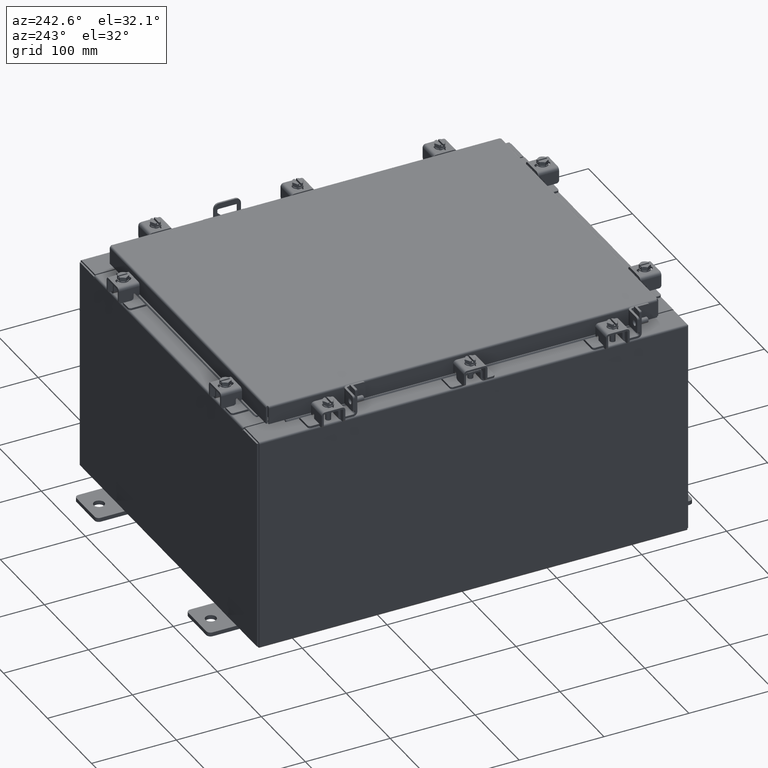
[diagram: clean part render]
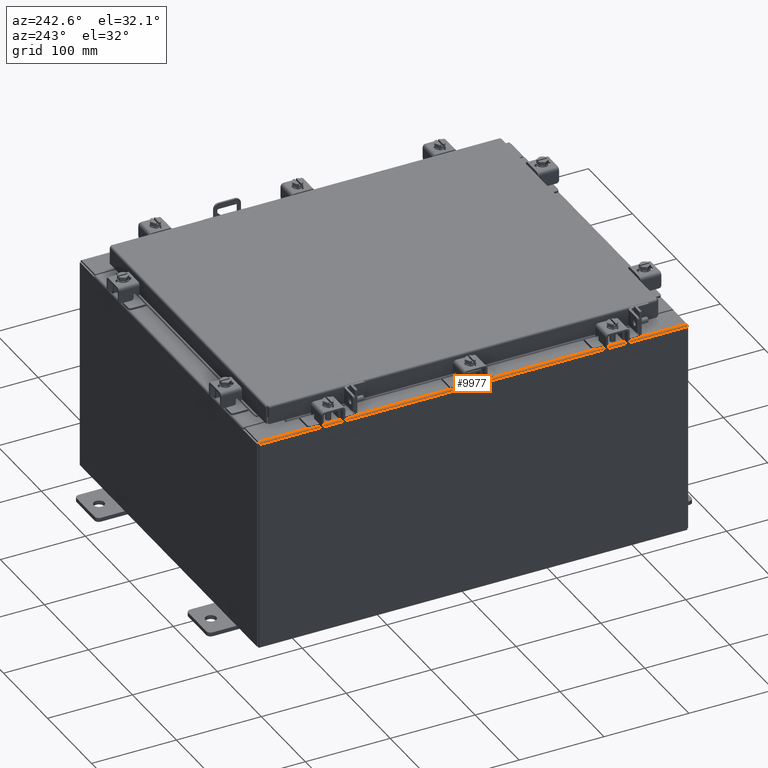
[diagram: same view with one face highlighted and labeled with its STEP entity id]
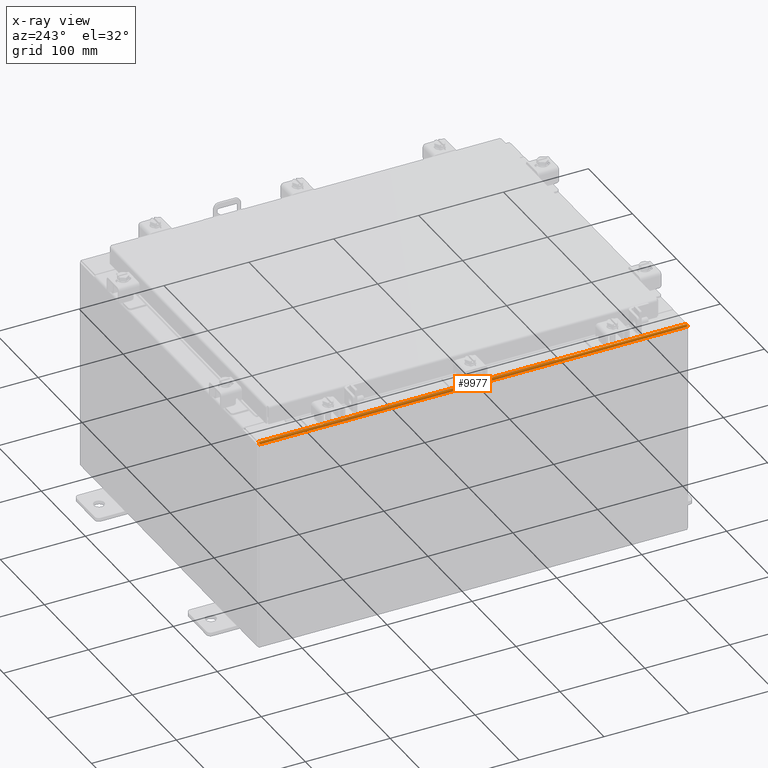
[diagram: x-ray of the same camera — body ghosted, the highlighted face saturated]
A machine part, auxiliary view. The second image highlights one B-rep face of the part: STEP entity #9977.
The next image is the same camera in x-ray: the body ghosted, the highlighted face saturated — about 0% of this face is hidden behind the body in this view.
In plain terms, the highlighted cylindrical surface (edge-blend (fillet) strip) has radius 2.2276 mm, axis along (-0, -1, -0).
Its self-contained STEP definition (entity closure, byte-faithful):
#449 = AXIS2_PLACEMENT_3D ( 'NONE', #3583, #15750, #5355 ) ;
#673 = LINE ( 'NONE', #16534, #18639 ) ;
#1397 = CARTESIAN_POINT ( 'NONE',  ( -7.912300000000032100, -9.925300000000001800, 9.837599999999998300 ) ) ;
#2631 = EDGE_CURVE ( 'NONE', #4442, #8261, #5494, .T. ) ;
#2682 = DIRECTION ( 'NONE',  ( -0.0000000000000000000, 1.000000000000000000, -1.100963394019027600E-016 ) ) ;
#2712 = ORIENTED_EDGE ( 'NONE', *, *, #15998, .T. ) ;
#3182 = DIRECTION ( 'NONE',  ( -0.0000000000000000000, -1.000000000000000000, -0.0000000000000000000 ) ) ;
#3233 = CARTESIAN_POINT ( 'NONE',  ( -8.000000000000032000, -9.925300000000001800, 9.837599999999998300 ) ) ;
#3583 = CARTESIAN_POINT ( 'NONE',  ( -7.912300000000032100, 9.925299999999998200, 9.837599999999998300 ) ) ;
#4442 = VERTEX_POINT ( 'NONE', #9007 ) ;
#5355 = DIRECTION ( 'NONE',  ( 0.0000000000000000000, 0.0000000000000000000, -1.000000000000000000 ) ) ;
#5494 = LINE ( 'NONE', #3233, #9548 ) ;
#5790 = CYLINDRICAL_SURFACE ( 'NONE', #20114, 0.08769999999999918100 ) ;
#6264 = VERTEX_POINT ( 'NONE', #8375 ) ;
#6896 = VERTEX_POINT ( 'NONE', #10378 ) ;
#7560 = ORIENTED_EDGE ( 'NONE', *, *, #16122, .F. ) ;
#8222 = CARTESIAN_POINT ( 'NONE',  ( -7.912300000000032100, -9.925300000000000000, 9.837599999999998300 ) ) ;
#8261 = VERTEX_POINT ( 'NONE', #21023 ) ;
#8375 = CARTESIAN_POINT ( 'NONE',  ( -7.912300000000032100, -9.925300000000001800, 9.925300000000000000 ) ) ;
#8673 = AXIS2_PLACEMENT_3D ( 'NONE', #8222, #20388, #9965 ) ;
#8854 = EDGE_CURVE ( 'NONE', #8261, #6896, #12090, .T. ) ;
#9007 = CARTESIAN_POINT ( 'NONE',  ( -8.000000000000032000, -9.925300000000000000, 9.837599999999998300 ) ) ;
#9548 = VECTOR ( 'NONE', #21464, 39.37007874015748100 ) ;
#9965 = DIRECTION ( 'NONE',  ( 0.0000000000000000000, 0.0000000000000000000, -1.000000000000000000 ) ) ;
#9977 = ADVANCED_FACE ( 'NONE', ( #10929 ), #5790, .T. ) ;
#10051 = DIRECTION ( 'NONE',  ( 0.0000000000000000000, 0.0000000000000000000, 1.000000000000000000 ) ) ;
#10378 = CARTESIAN_POINT ( 'NONE',  ( -7.912300000000032100, 9.925299999999998200, 9.925299999999998200 ) ) ;
#10929 = FACE_OUTER_BOUND ( 'NONE', #10945, .T. ) ;
#10945 = EDGE_LOOP ( 'NONE', ( #18715, #7560, #2712, #16136 ) ) ;
#12090 = CIRCLE ( 'NONE', #449, 0.08769999999999918100 ) ;
#12371 = CIRCLE ( 'NONE', #8673, 0.08769999999999918100 ) ;
#15750 = DIRECTION ( 'NONE',  ( 0.0000000000000000000, 1.000000000000000000, 0.0000000000000000000 ) ) ;
#15998 = EDGE_CURVE ( 'NONE', #6264, #6896, #673, .T. ) ;
#16122 = EDGE_CURVE ( 'NONE', #6264, #4442, #12371, .T. ) ;
#16136 = ORIENTED_EDGE ( 'NONE', *, *, #8854, .F. ) ;
#16534 = CARTESIAN_POINT ( 'NONE',  ( -7.912300000000032100, 9.925299999999998200, 9.925299999999998200 ) ) ;
#18639 = VECTOR ( 'NONE', #2682, 39.37007874015748100 ) ;
#18715 = ORIENTED_EDGE ( 'NONE', *, *, #2631, .F. ) ;
#20114 = AXIS2_PLACEMENT_3D ( 'NONE', #1397, #3182, #10051 ) ;
#20388 = DIRECTION ( 'NONE',  ( -0.0000000000000000000, -1.000000000000000000, -0.0000000000000000000 ) ) ;
#21023 = CARTESIAN_POINT ( 'NONE',  ( -8.000000000000032000, 9.925299999999998200, 9.837599999999998300 ) ) ;
#21464 = DIRECTION ( 'NONE',  ( 0.0000000000000000000, 1.000000000000000000, 0.0000000000000000000 ) ) ;